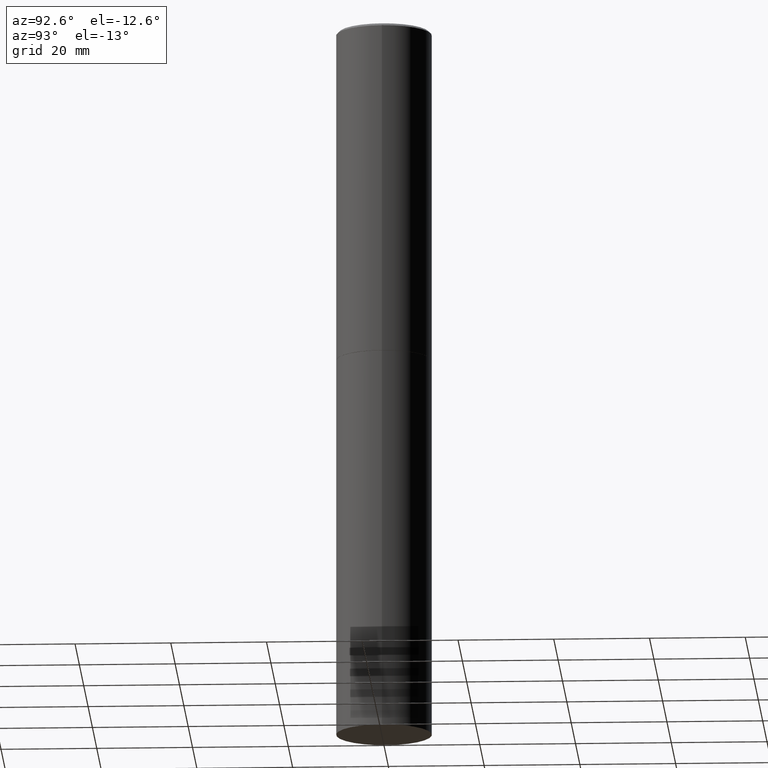
[diagram: clean part render]
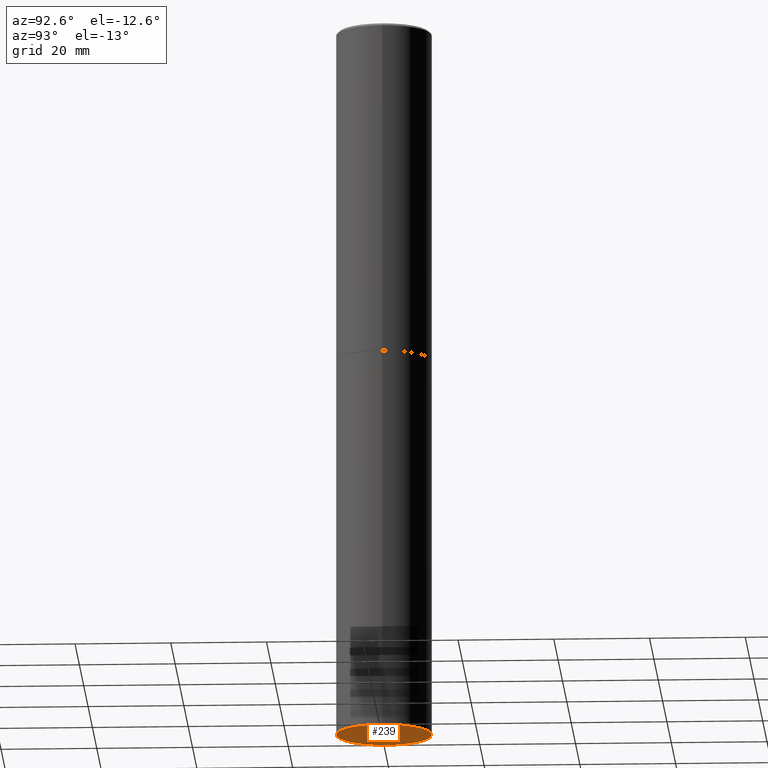
[diagram: same view with one face highlighted and labeled with its STEP entity id]
A machine part, auxiliary view. The second image highlights one B-rep face of the part: STEP entity #239.
In plain terms, the highlighted planar face has unit normal (0, -0, -1).
Its self-contained STEP definition (entity closure, byte-faithful):
#61 = ORIENTED_EDGE ( 'NONE', *, *, #357, .F. ) ;
#63 = FACE_OUTER_BOUND ( 'NONE', #247, .T. ) ;
#77 = EDGE_CURVE ( 'NONE', #168, #359, #216, .T. ) ;
#84 = AXIS2_PLACEMENT_3D ( 'NONE', #113, #108, #222 ) ;
#108 = DIRECTION ( 'NONE',  ( -2.445468806185136597E-29, 3.491481338843145583E-15, 1.000000000000000000 ) ) ;
#113 = CARTESIAN_POINT ( 'NONE',  ( 1.444171603492632270E-28, -2.061894304653819197E-14, -5.905499999999999972 ) ) ;
#114 = DIRECTION ( 'NONE',  ( -2.445468806185136597E-29, 3.491481338843145583E-15, 1.000000000000000000 ) ) ;
#123 = DIRECTION ( 'NONE',  ( -1.000000000000000000, 6.982962677686265922E-15, -4.876176775795935793E-29 ) ) ;
#145 = CARTESIAN_POINT ( 'NONE',  ( -0.3937000000000000499, -1.232315148344049418E-14, -5.905499999999999972 ) ) ;
#168 = VERTEX_POINT ( 'NONE', #145 ) ;
#216 = CIRCLE ( 'NONE', #268, 0.3937000000000000499 ) ;
#222 = DIRECTION ( 'NONE',  ( 1.000000000000000000, -6.982962677686267499E-15, 0.000000000000000000 ) ) ;
#223 = DIRECTION ( 'NONE',  ( 1.000000000000000000, -6.982962677686267499E-15, 0.000000000000000000 ) ) ;
#239 = ADVANCED_FACE ( 'NONE', ( #63 ), #278, .T. ) ;
#247 = EDGE_LOOP ( 'NONE', ( #61, #324 ) ) ;
#254 = CARTESIAN_POINT ( 'NONE',  ( 2.749192406205227578E-15, 0.3936999999999793998, -5.905500000000000860 ) ) ;
#268 = AXIS2_PLACEMENT_3D ( 'NONE', #290, #114, #223 ) ;
#278 = PLANE ( 'NONE',  #327 ) ;
#290 = CARTESIAN_POINT ( 'NONE',  ( 1.444171603492632270E-28, -2.061894304653819197E-14, -5.905499999999999972 ) ) ;
#324 = ORIENTED_EDGE ( 'NONE', *, *, #77, .F. ) ;
#326 = CARTESIAN_POINT ( 'NONE',  ( 0.3937000000000000499, -2.336813545274327834E-14, -5.905499999999999972 ) ) ;
#327 = AXIS2_PLACEMENT_3D ( 'NONE', #254, #363, #123 ) ;
#352 = CIRCLE ( 'NONE', #84, 0.3937000000000000499 ) ;
#357 = EDGE_CURVE ( 'NONE', #359, #168, #352, .T. ) ;
#359 = VERTEX_POINT ( 'NONE', #326 ) ;
#363 = DIRECTION ( 'NONE',  ( 2.438088387897960049E-29, -3.491481338843145188E-15, -1.000000000000000000 ) ) ;